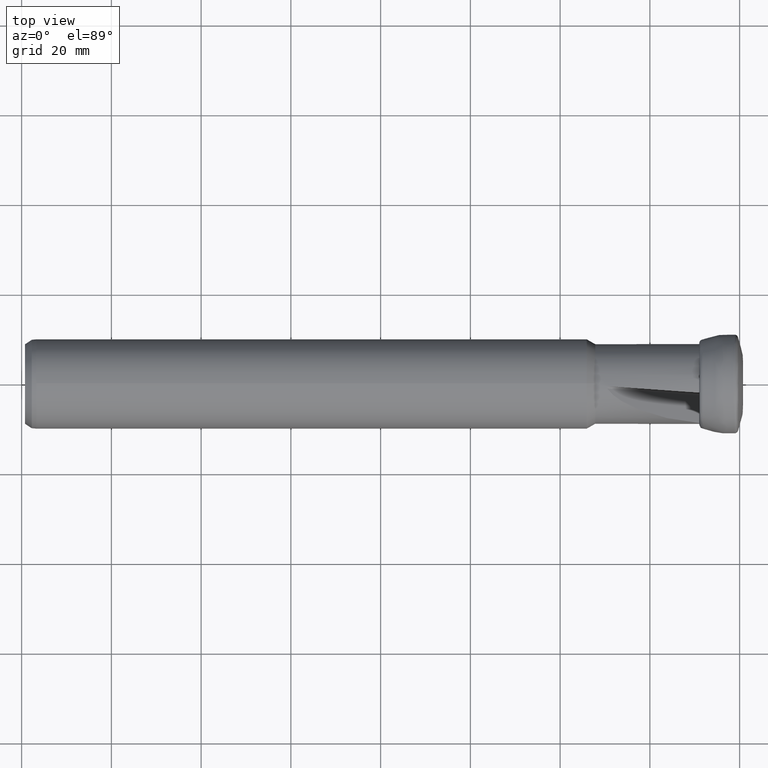
[diagram: clean part render]
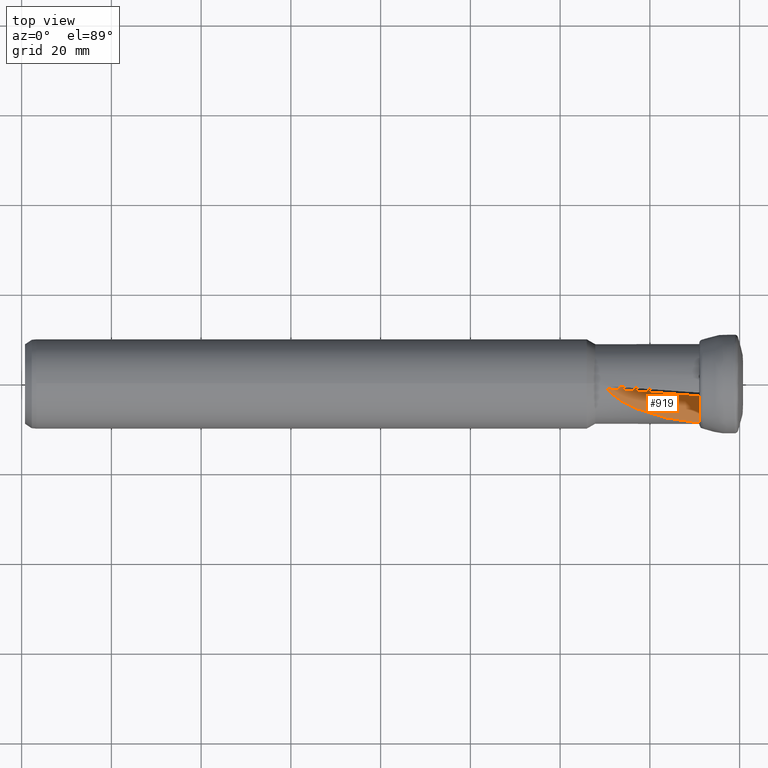
[diagram: same view with one face highlighted and labeled with its STEP entity id]
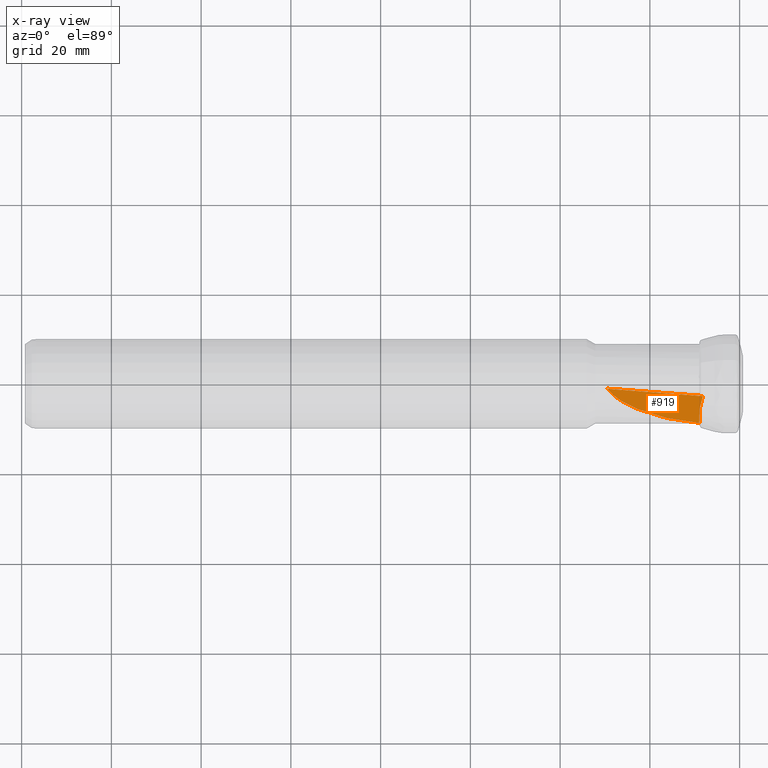
[diagram: x-ray of the same camera — body ghosted, the highlighted face saturated]
A machine part, top view. The second image highlights one B-rep face of the part: STEP entity #919.
The next image is the same camera in x-ray: the body ghosted, the highlighted face saturated — about 0% of this face is hidden behind the body in this view.
In plain terms, the highlighted planar face has unit normal (-0.369, -0.1483, -0.9175).
Its self-contained STEP definition (entity closure, byte-faithful):
#39 = DIRECTION ( 'NONE',  ( -0.3689742939047724300, -0.1482710127569039600, -0.9175367443397112200 ) ) ;
#51 = VERTEX_POINT ( 'NONE', #1692 ) ;
#52 = CARTESIAN_POINT ( 'NONE',  ( -8.990769696988822400, -8.718197842188509100, 1.789700082265060200 ) ) ;
#55 = CARTESIAN_POINT ( 'NONE',  ( -8.991841385906276700, -6.666717730697105700, 1.458618400802284700 ) ) ;
#62 = CARTESIAN_POINT ( 'NONE',  ( -8.233027349189962200, -2.965013137247855600, 0.5552885150912770800 ) ) ;
#159 = EDGE_LOOP ( 'NONE', ( #1495, #394, #1365 ) ) ;
#187 = CARTESIAN_POINT ( 'NONE',  ( -8.990769696988822400, -8.718197842188509100, 1.789700082265060200 ) ) ;
#238 = CARTESIAN_POINT ( 'NONE',  ( -8.984644559529419500, -6.155067337655267100, 1.373043227525664300 ) ) ;
#394 = ORIENTED_EDGE ( 'NONE', *, *, #2191, .T. ) ;
#409 = CARTESIAN_POINT ( 'NONE',  ( -8.900394698039210800, -5.401784721894742300, 1.217435280087378200 ) ) ;
#445 = VECTOR ( 'NONE', #1886, 1000.000000000000100 ) ;
#580 = CARTESIAN_POINT ( 'NONE',  ( -8.990769696988822400, -8.718197842188509100, 1.789700082265060200 ) ) ;
#587 = CARTESIAN_POINT ( 'NONE',  ( -8.759217412913646000, -4.787761921254543500, 1.061438724653128300 ) ) ;
#588 = LINE ( 'NONE', #679, #445 ) ;
#679 = CARTESIAN_POINT ( 'NONE',  ( -29.87739713377086300, -1.205619047534837600, 8.974950138908514700 ) ) ;
#761 = CARTESIAN_POINT ( 'NONE',  ( -8.653732699846743900, -4.423363052407287600, 0.9601338587428823700 ) ) ;
#791 = CARTESIAN_POINT ( 'NONE',  ( -8.156392788940667800, -2.724499633579591200, 0.4856048060499598100 ) ) ;
#919 = ADVANCED_FACE ( 'Fl�che12', ( #950 ), #1087, .F. ) ;
#930 = CARTESIAN_POINT ( 'NONE',  ( -8.995408577828751400, -7.692110416118377500, 1.625753085061834700 ) ) ;
#931 = VERTEX_POINT ( 'NONE', #52 ) ;
#936 = CARTESIAN_POINT ( 'NONE',  ( -8.512547558329789200, -3.937609346742676900, 0.8248620207962781300 ) ) ;
#950 = FACE_OUTER_BOUND ( 'NONE', #159, .T. ) ;
#995 = B_SPLINE_CURVE_WITH_KNOTS ( 'NONE', 3,
 ( #580, #1620, #930, #2134, #1104, #55, #1275, #238, #1451, #409, #1628, #587, #1802, #761, #1967, #936, #2140, #1110, #62, #1281 ),
 .UNSPECIFIED., .F., .F.,
 ( 4, 2, 2, 2, 2, 2, 2, 2, 2, 4 ),
 ( 0.0002302970480690367600, 0.001788886363316386000, 0.002178533692128223900, 0.002568181020940061400, 0.003347475678563737700, 0.004126770336187413900, 0.004516417664999251000, 0.004906064993811088000, 0.005685359651434765600, 0.006464654309058443100 ),
 .UNSPECIFIED. ) ;
#1046 = CARTESIAN_POINT ( 'NONE',  ( -29.46553070968217000, -1.234419553517923900, 8.813978010290959700 ) ) ;
#1087 = PLANE ( 'NONE',  #1487 ) ;
#1104 = CARTESIAN_POINT ( 'NONE',  ( -8.992733094890962100, -6.923065919248306200, 1.500402038857529000 ) ) ;
#1110 = CARTESIAN_POINT ( 'NONE',  ( -8.300992502319362000, -3.208909366176406800, 0.6220325835274143100 ) ) ;
#1228 = CARTESIAN_POINT ( 'NONE',  ( -18.79762857501463800, -7.934618442745102300, 5.606764347449088200 ) ) ;
#1240 = VERTEX_POINT ( 'NONE', #791 ) ;
#1243 = CARTESIAN_POINT ( 'NONE',  ( -7.287077516027759200, -2.197031025738205300, 0.05078484254768240300 ) ) ;
#1259 = DIRECTION ( 'NONE',  ( -0.9277918443257997500, 0.0000000000000000000, 0.3730982358609203400 ) ) ;
#1275 = CARTESIAN_POINT ( 'NONE',  ( -8.992344355486585200, -6.538360303707329500, 1.438078511838540200 ) ) ;
#1281 = CARTESIAN_POINT ( 'NONE',  ( -8.156392788940667800, -2.724499633579591200, 0.4856048060499598100 ) ) ;
#1365 = ORIENTED_EDGE ( 'NONE', *, *, #1662, .T. ) ;
#1410 =( BOUNDED_CURVE ( )  B_SPLINE_CURVE ( 3, ( #1046, #1901, #1228, #187 ),
 .UNSPECIFIED., .F., .F. ) 
 B_SPLINE_CURVE_WITH_KNOTS ( ( 4, 4 ),
 ( 3.440951901281752400, 4.670130388823251300 ),
 .UNSPECIFIED. ) 
 CURVE ( )  GEOMETRIC_REPRESENTATION_ITEM ( )  RATIONAL_B_SPLINE_CURVE ( ( 1.000000000000000000, 0.8780069115319479900, 0.8780069115319479900, 1.000000000000000000 ) ) 
 REPRESENTATION_ITEM ( '' )  );
#1451 = CARTESIAN_POINT ( 'NONE',  ( -8.966350718199205300, -5.902081606115085100, 1.324804932886047600 ) ) ;
#1487 = AXIS2_PLACEMENT_3D ( 'NONE', #1243, #39, #1259 ) ;
#1495 = ORIENTED_EDGE ( 'NONE', *, *, #1889, .T. ) ;
#1620 = CARTESIAN_POINT ( 'NONE',  ( -8.993502362292529600, -8.205155462804979600, 1.707892971660993400 ) ) ;
#1628 = CARTESIAN_POINT ( 'NONE',  ( -8.852395956899258100, -5.154538600112926100, 1.158179086989232600 ) ) ;
#1662 = EDGE_CURVE ( 'NONE', #1240, #51, #588, .T. ) ;
#1692 = CARTESIAN_POINT ( 'NONE',  ( -29.46553070968217000, -1.234419553517923900, 8.813978010290959700 ) ) ;
#1802 = CARTESIAN_POINT ( 'NONE',  ( -8.724019469866407300, -4.666302659476979600, 1.027656945202407100 ) ) ;
#1886 = DIRECTION ( 'NONE',  ( -0.9294216745817887000, 0.06499149465468785600, 0.3632512304729790300 ) ) ;
#1889 = EDGE_CURVE ( 'NONE', #51, #931, #1410, .T. ) ;
#1901 = CARTESIAN_POINT ( 'NONE',  ( -26.57082517281398600, -5.093418982780001200, 8.273515537281189900 ) ) ;
#1967 = CARTESIAN_POINT ( 'NONE',  ( -8.618393153419107800, -4.301932777857275300, 0.9262998197592204900 ) ) ;
#2134 = CARTESIAN_POINT ( 'NONE',  ( -8.993178984129825100, -7.051240006810143500, 1.521293870773046800 ) ) ;
#2140 = CARTESIAN_POINT ( 'NONE',  ( -8.442004389200453900, -3.694719036641537400, 0.7572437933306492800 ) ) ;
#2191 = EDGE_CURVE ( 'NONE', #931, #1240, #995, .T. ) ;